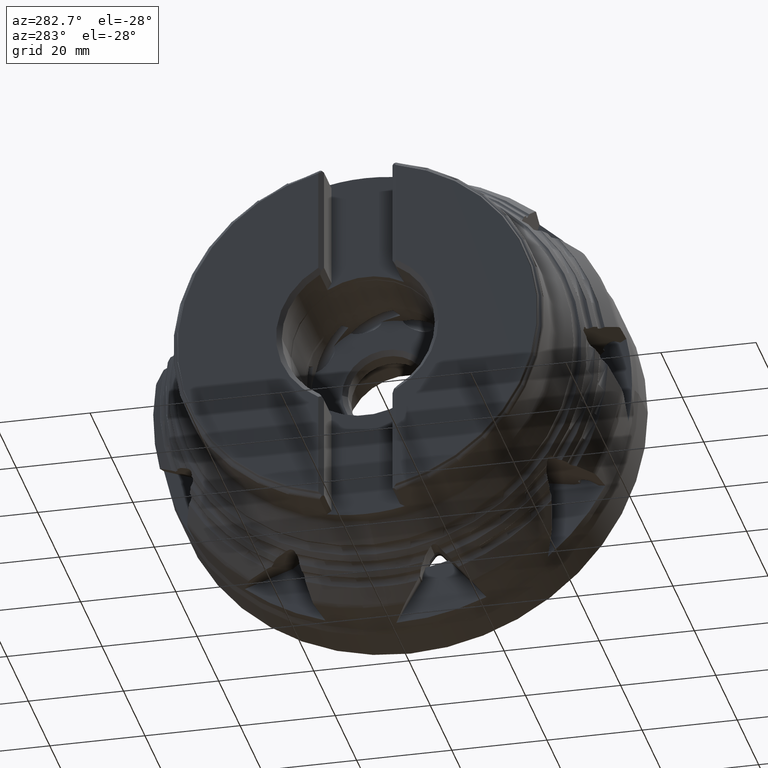
[diagram: clean part render]
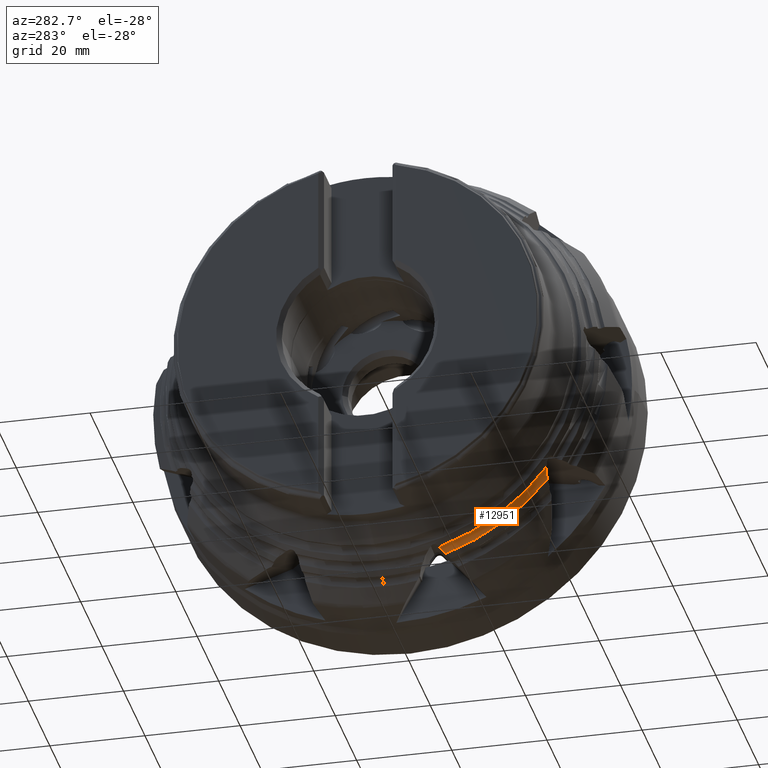
[diagram: same view with one face highlighted and labeled with its STEP entity id]
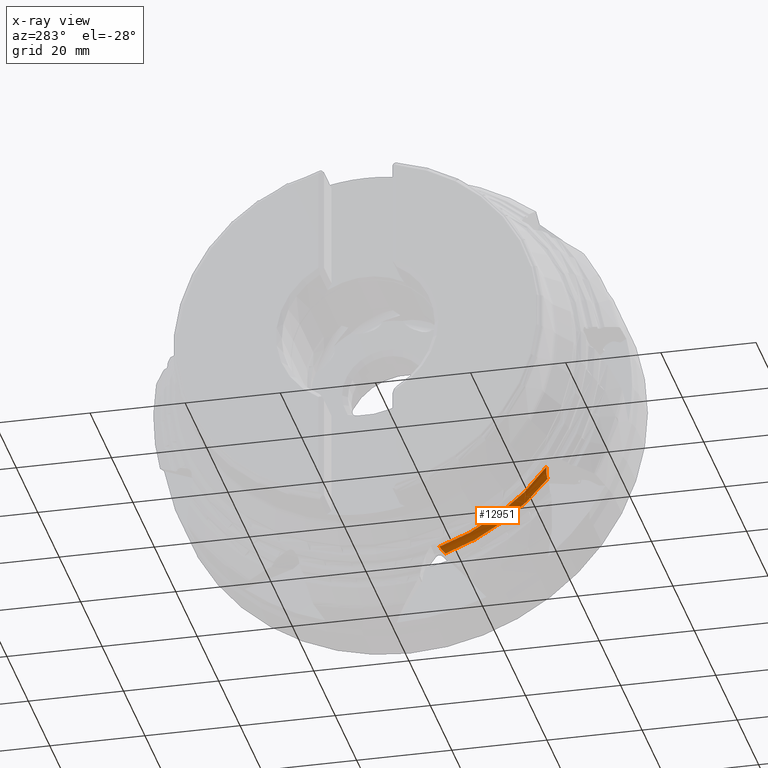
[diagram: x-ray of the same camera — body ghosted, the highlighted face saturated]
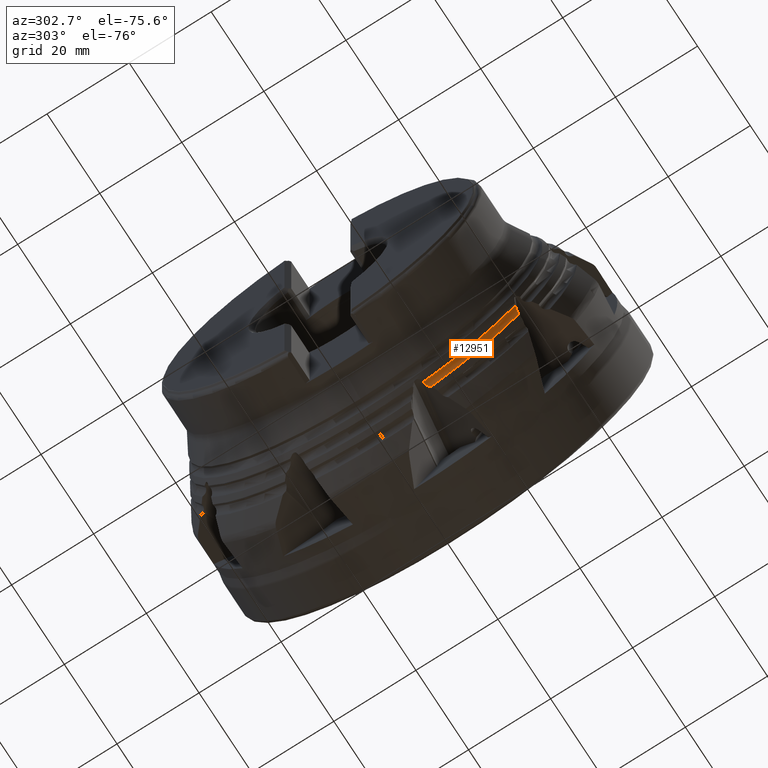
[diagram: same view with one face highlighted and labeled with its STEP entity id]
A machine part, auxiliary view. The second image highlights one B-rep face of the part: STEP entity #12951.
The next image is the same camera in x-ray: the body ghosted, the highlighted face saturated — about 0% of this face is hidden behind the body in this view.
A second angle (auxiliary view) of the same face is appended — the face is thin or edge-on in the first view.
In plain terms, the highlighted toroidal blend (fillet) surface has major radius 45.3255 mm and minor (blend) radius 1.5 mm.
Its self-contained STEP definition (entity closure, byte-faithful):
#698 = ORIENTED_EDGE ( 'NONE', *, *, #9458, .F. ) ;
#706 = ORIENTED_EDGE ( 'NONE', *, *, #9400, .F. ) ;
#723 = ORIENTED_EDGE ( 'NONE', *, *, #9408, .F. ) ;
#858 = ORIENTED_EDGE ( 'NONE', *, *, #9417, .T. ) ;
#6176 = FACE_OUTER_BOUND ( 'NONE', #14896, .T. ) ;
#6181 = TOROIDAL_SURFACE ( 'NONE', #22826, 45.32546180612555300, 1.499999999999990500 ) ;
#7303 = DIRECTION ( 'NONE',  ( 1.000000000000000000, -0.0000000000000000000, -0.0000000000000000000 ) ) ;
#7311 = CARTESIAN_POINT ( 'NONE',  ( -28.31936529679574500, 0.0000000000000000000, 0.0000000000000000000 ) ) ;
#7313 = DIRECTION ( 'NONE',  ( 0.0000000000000000000, 0.0000000000000000000, -1.000000000000000000 ) ) ;
#7378 = CARTESIAN_POINT ( 'NONE',  ( -26.85538848306713100, -35.21003630790174600, -28.02028793888687000 ) ) ;
#7379 = CARTESIAN_POINT ( 'NONE',  ( -28.31936529679585100, -35.30596034078551100, -25.96459641386808700 ) ) ;
#7382 = CARTESIAN_POINT ( 'NONE',  ( -28.31936529679456500, -12.74307192898541200, -41.93191171807499300 ) ) ;
#7389 = CARTESIAN_POINT ( 'NONE',  ( -26.85538848306713400, -13.77289827000726600, -42.83912307956266800 ) ) ;
#9400 = EDGE_CURVE ( 'NONE', #14382, #14394, #20496, .T. ) ;
#9408 = EDGE_CURVE ( 'NONE', #14383, #14382, #17857, .T. ) ;
#9417 = EDGE_CURVE ( 'NONE', #14383, #14386, #20503, .T. ) ;
#9458 = EDGE_CURVE ( 'NONE', #14394, #14386, #22848, .T. ) ;
#11101 = AXIS2_PLACEMENT_3D ( 'NONE', #21741, #21742, #21743 ) ;
#12951 = ADVANCED_FACE ( 'NONE', ( #6176 ), #6181, .F. ) ;
#14382 = VERTEX_POINT ( 'NONE', #7378 ) ;
#14383 = VERTEX_POINT ( 'NONE', #7379 ) ;
#14386 = VERTEX_POINT ( 'NONE', #7382 ) ;
#14394 = VERTEX_POINT ( 'NONE', #7389 ) ;
#14896 = EDGE_LOOP ( 'NONE', ( #723, #858, #698, #706 ) ) ;
#17857 = B_SPLINE_CURVE_WITH_KNOTS ( 'NONE', 3,
 ( #21773, #21779, #21780, #21781, #21782, #21783, #21784, #21785, #21786, #21787 ),
 .UNSPECIFIED., .F., .F.,
 ( 4, 2, 2, 2, 4 ),
 ( 0.0004957884310556639700, 0.001153304637507092200, 0.001810820843958520600, 0.002468337050409948500, 0.003125853256861376800 ),
 .UNSPECIFIED. ) ;
#20496 = CIRCLE ( 'NONE', #11101, 44.99870212552711000 ) ;
#20503 = CIRCLE ( 'NONE', #22270, 43.82546180612556700 ) ;
#21741 = CARTESIAN_POINT ( 'NONE',  ( -26.85538848306705600, 0.0000000000000000000, 0.0000000000000000000 ) ) ;
#21742 = DIRECTION ( 'NONE',  ( 1.000000000000000000, -0.0000000000000000000, -0.0000000000000000000 ) ) ;
#21743 = DIRECTION ( 'NONE',  ( 0.0000000000000000000, 0.0000000000000000000, -1.000000000000000000 ) ) ;
#21773 = CARTESIAN_POINT ( 'NONE',  ( -28.31936529679585100, -35.30596034078551100, -25.96459641386808700 ) ) ;
#21779 = CARTESIAN_POINT ( 'NONE',  ( -28.12871589166534400, -35.23849286867574900, -26.05633686908759800 ) ) ;
#21780 = CARTESIAN_POINT ( 'NONE',  ( -27.95732435731267500, -35.18560453266273000, -26.18596642032732500 ) ) ;
#21781 = CARTESIAN_POINT ( 'NONE',  ( -27.64188961573087500, -35.10697324052375700, -26.48521547157688600 ) ) ;
#21782 = CARTESIAN_POINT ( 'NONE',  ( -27.50212087691758400, -35.08225071271421300, -26.65156726014823400 ) ) ;
#21783 = CARTESIAN_POINT ( 'NONE',  ( -27.25103905829562500, -35.06225881470082600, -27.01162092718896100 ) ) ;
#21784 = CARTESIAN_POINT ( 'NONE',  ( -27.14096194475373400, -35.06758828645819600, -27.20506665057821000 ) ) ;
#21785 = CARTESIAN_POINT ( 'NONE',  ( -26.96406604444739900, -35.11185587646822600, -27.60170498675780600 ) ) ;
#21786 = CARTESIAN_POINT ( 'NONE',  ( -26.89490856015770600, -35.15128283970043600, -27.80976852599034600 ) ) ;
#21787 = CARTESIAN_POINT ( 'NONE',  ( -26.85538848306713100, -35.21003630790174600, -28.02028793888687000 ) ) ;
#21841 = CARTESIAN_POINT ( 'NONE',  ( -28.31936529679574500, 0.0000000000000000000, 0.0000000000000000000 ) ) ;
#21842 = DIRECTION ( 'NONE',  ( 1.000000000000000000, -0.0000000000000000000, -0.0000000000000000000 ) ) ;
#21843 = DIRECTION ( 'NONE',  ( 0.0000000000000000000, 0.0000000000000000000, -1.000000000000000000 ) ) ;
#22067 = CARTESIAN_POINT ( 'NONE',  ( -26.85538848306713400, -13.77289827000726600, -42.83912307956266800 ) ) ;
#22072 = CARTESIAN_POINT ( 'NONE',  ( -26.89166129506547200, -13.65485096525369700, -42.70637056649227500 ) ) ;
#22073 = CARTESIAN_POINT ( 'NONE',  ( -26.95319103494600900, -13.54046220803491500, -42.58350038413232900 ) ) ;
#22074 = CARTESIAN_POINT ( 'NONE',  ( -27.12593607631105600, -13.31888180758399700, -42.35720059245418400 ) ) ;
#22075 = CARTESIAN_POINT ( 'NONE',  ( -27.23506569506525900, -13.21510057094929800, -42.25737932809463600 ) ) ;
#22076 = CARTESIAN_POINT ( 'NONE',  ( -27.49360709679309200, -13.02873310619236600, -42.09180342907697500 ) ) ;
#22077 = CARTESIAN_POINT ( 'NONE',  ( -27.64295106517020900, -12.94669000926271400, -42.02668124580066700 ) ) ;
#22078 = CARTESIAN_POINT ( 'NONE',  ( -27.88523972085048500, -12.84953333931515500, -41.96386908730755700 ) ) ;
#22079 = CARTESIAN_POINT ( 'NONE',  ( -27.97069403435430600, -12.82087685555150700, -41.94840158381512700 ) ) ;
#22080 = CARTESIAN_POINT ( 'NONE',  ( -28.14344077869621700, -12.77421599299781000, -41.93056315218439800 ) ) ;
#22081 = CARTESIAN_POINT ( 'NONE',  ( -28.23086353245714600, -12.75600960262902100, -41.92797997018041700 ) ) ;
#22082 = CARTESIAN_POINT ( 'NONE',  ( -28.31936529679456500, -12.74307192898541200, -41.93191171807499300 ) ) ;
#22270 = AXIS2_PLACEMENT_3D ( 'NONE', #21841, #21842, #21843 ) ;
#22826 = AXIS2_PLACEMENT_3D ( 'NONE', #7311, #7303, #7313 ) ;
#22848 = B_SPLINE_CURVE_WITH_KNOTS ( 'NONE', 3,
 ( #22067, #22072, #22073, #22074, #22075, #22076, #22077, #22078, #22079, #22080, #22081, #22082 ),
 .UNSPECIFIED., .F., .F.,
 ( 4, 2, 2, 2, 2, 4 ),
 ( 9.870091576317636600E-007, 0.0005373037065432835600, 0.001073620403928935400, 0.001609937101314587000, 0.001878095450007416300, 0.002146253798700245600 ),
 .UNSPECIFIED. ) ;